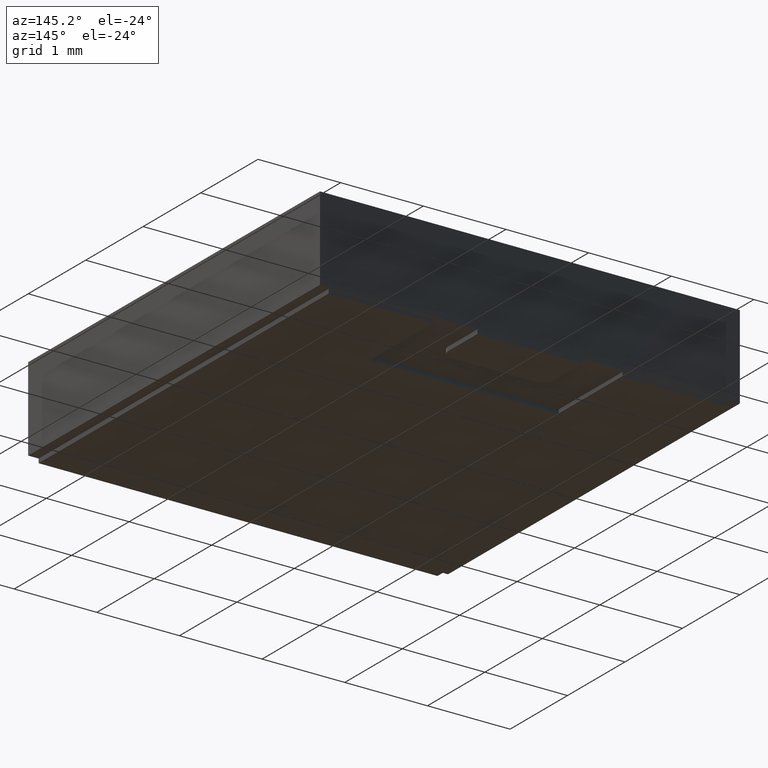
[diagram: clean part render]
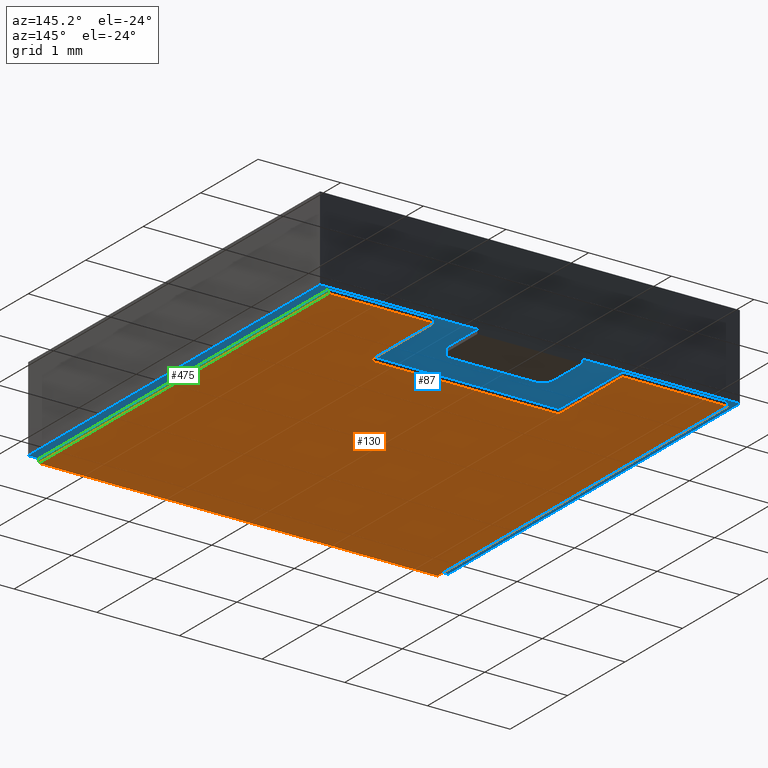
[diagram: same view with three faces highlighted in distinct colors, each labeled with its STEP entity id]
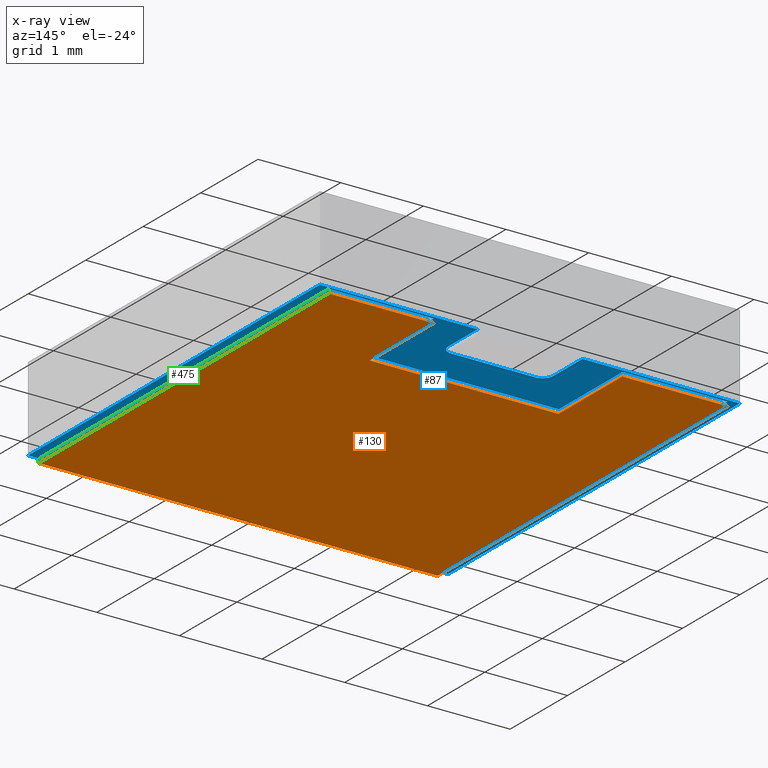
[diagram: x-ray of the same camera — body ghosted, the three highlighted faces saturated]
A machine part, auxiliary view with three faces highlighted in distinct colors.
The next image is the same camera in x-ray (body ghosted, the three faces saturated) — at least one of them is partly hidden behind the body in this view.
Their STEP definitions:

[orange] entity #130 — the highlighted planar face has unit normal (-0, 0, 1).
#5 = VERTEX_POINT ( 'NONE', #238 ) ;
#26 = CARTESIAN_POINT ( 'NONE',  ( -0.04499999999968905956, 0.05500000002084703965, 0.000000000000000000 ) ) ;
#37 = VECTOR ( 'NONE', #689, 39.37007874015748143 ) ;
#50 = EDGE_CURVE ( 'NONE', #154, #580, #598, .T. ) ;
#57 = VECTOR ( 'NONE', #412, 39.37007874015748143 ) ;
#59 = CARTESIAN_POINT ( 'NONE',  ( 0.09499999999999889089, 0.09874999999997412237, 0.000000000000000000 ) ) ;
#76 = ORIENTED_EDGE ( 'NONE', *, *, #740, .F. ) ;
#92 = DIRECTION ( 'NONE',  ( 1.000000000000000000, 0.000000000000000000, 0.000000000000000000 ) ) ;
#100 = EDGE_CURVE ( 'NONE', #580, #714, #572, .T. ) ;
#102 = ORIENTED_EDGE ( 'NONE', *, *, #291, .F. ) ;
#126 = VERTEX_POINT ( 'NONE', #26 ) ;
#130 = ADVANCED_FACE ( 'NONE', ( #691 ), #626, .F. ) ;
#154 = VERTEX_POINT ( 'NONE', #512 ) ;
#199 = CARTESIAN_POINT ( 'NONE',  ( 0.04500000000031433717, 0.09874999999997413624, 0.000000000000000000 ) ) ;
#226 = LINE ( 'NONE', #716, #57 ) ;
#229 = EDGE_CURVE ( 'NONE', #784, #286, #775, .T. ) ;
#232 = CARTESIAN_POINT ( 'NONE',  ( -0.09499999999999886313, -0.1000000000000014211, 0.000000000000000000 ) ) ;
#238 = CARTESIAN_POINT ( 'NONE',  ( 0.04500000000031433717, 0.05500000002084703965, 0.000000000000000000 ) ) ;
#239 = VECTOR ( 'NONE', #579, 39.37007874015748143 ) ;
#245 = ORIENTED_EDGE ( 'NONE', *, *, #229, .F. ) ;
#247 = CARTESIAN_POINT ( 'NONE',  ( -0.09499999999999886313, 0.09875000000001676881, 0.000000000000000000 ) ) ;
#249 = CARTESIAN_POINT ( 'NONE',  ( -0.04499999999968905956, 0.05500000002084703965, 0.000000000000000000 ) ) ;
#255 = ORIENTED_EDGE ( 'NONE', *, *, #50, .F. ) ;
#264 = DIRECTION ( 'NONE',  ( -1.000000000000000000, 3.414809992101873307E-16, -0.000000000000000000 ) ) ;
#275 = CARTESIAN_POINT ( 'NONE',  ( 0.000000000000000000, 0.000000000000000000, 0.000000000000000000 ) ) ;
#286 = VERTEX_POINT ( 'NONE', #707 ) ;
#291 = EDGE_CURVE ( 'NONE', #286, #154, #719, .T. ) ;
#292 = CARTESIAN_POINT ( 'NONE',  ( -0.09499999999999886313, 0.09875000000001676881, 0.000000000000000000 ) ) ;
#305 = DIRECTION ( 'NONE',  ( 8.590716961209431840E-17, 1.000000000000000000, -0.000000000000000000 ) ) ;
#306 = VERTEX_POINT ( 'NONE', #523 ) ;
#341 = LINE ( 'NONE', #463, #239 ) ;
#387 = AXIS2_PLACEMENT_3D ( 'NONE', #275, #518, #92 ) ;
#412 = DIRECTION ( 'NONE',  ( -0.000000000000000000, -1.000000000000000000, -0.000000000000000000 ) ) ;
#414 = DIRECTION ( 'NONE',  ( -0.000000000000000000, -1.000000000000000000, -0.000000000000000000 ) ) ;
#423 = EDGE_CURVE ( 'NONE', #5, #126, #623, .T. ) ;
#435 = ORIENTED_EDGE ( 'NONE', *, *, #725, .F. ) ;
#463 = CARTESIAN_POINT ( 'NONE',  ( -0.04499999999968905956, 0.09875000000001676881, 0.000000000000000000 ) ) ;
#476 = DIRECTION ( 'NONE',  ( 1.000000000000000000, -0.000000000000000000, -0.000000000000000000 ) ) ;
#486 = ORIENTED_EDGE ( 'NONE', *, *, #100, .F. ) ;
#487 = EDGE_LOOP ( 'NONE', ( #549, #612, #435, #486, #255, #102, #245, #76 ) ) ;
#512 = CARTESIAN_POINT ( 'NONE',  ( 0.09499999999999886313, -0.1000000000000014211, 0.000000000000000000 ) ) ;
#518 = DIRECTION ( 'NONE',  ( -0.000000000000000000, 0.000000000000000000, 1.000000000000000000 ) ) ;
#523 = CARTESIAN_POINT ( 'NONE',  ( -0.04499999999968905956, 0.09875000000001676881, 0.000000000000000000 ) ) ;
#539 = EDGE_CURVE ( 'NONE', #126, #306, #341, .T. ) ;
#549 = ORIENTED_EDGE ( 'NONE', *, *, #539, .F. ) ;
#571 = CARTESIAN_POINT ( 'NONE',  ( 0.09499999999999889089, 0.09874999999997412237, 0.000000000000000000 ) ) ;
#572 = LINE ( 'NONE', #199, #777 ) ;
#579 = DIRECTION ( 'NONE',  ( -0.000000000000000000, 1.000000000000000000, -0.000000000000000000 ) ) ;
#580 = VERTEX_POINT ( 'NONE', #571 ) ;
#591 = DIRECTION ( 'NONE',  ( -1.000000000000000000, -0.000000000000000000, -0.000000000000000000 ) ) ;
#592 = CARTESIAN_POINT ( 'NONE',  ( 0.09499999999999886313, -0.1000000000000014211, 0.000000000000000000 ) ) ;
#597 = VECTOR ( 'NONE', #591, 39.37007874015748143 ) ;
#598 = LINE ( 'NONE', #59, #694 ) ;
#603 = VECTOR ( 'NONE', #476, 39.37007874015748143 ) ;
#612 = ORIENTED_EDGE ( 'NONE', *, *, #423, .F. ) ;
#623 = LINE ( 'NONE', #249, #37 ) ;
#626 = PLANE ( 'NONE',  #387 ) ;
#660 = CARTESIAN_POINT ( 'NONE',  ( 0.04500000000031433717, 0.09874999999997413624, 0.000000000000000000 ) ) ;
#689 = DIRECTION ( 'NONE',  ( -1.000000000000000000, -0.000000000000000000, -0.000000000000000000 ) ) ;
#691 = FACE_OUTER_BOUND ( 'NONE', #487, .T. ) ;
#694 = VECTOR ( 'NONE', #305, 39.37007874015748143 ) ;
#707 = CARTESIAN_POINT ( 'NONE',  ( -0.09499999999999886313, -0.1000000000000014211, 0.000000000000000000 ) ) ;
#714 = VERTEX_POINT ( 'NONE', #660 ) ;
#716 = CARTESIAN_POINT ( 'NONE',  ( 0.04500000000031433717, 0.05500000002084703965, 0.000000000000000000 ) ) ;
#717 = VECTOR ( 'NONE', #414, 39.37007874015748143 ) ;
#719 = LINE ( 'NONE', #592, #603 ) ;
#721 = LINE ( 'NONE', #292, #597 ) ;
#725 = EDGE_CURVE ( 'NONE', #714, #5, #226, .T. ) ;
#740 = EDGE_CURVE ( 'NONE', #306, #784, #721, .T. ) ;
#775 = LINE ( 'NONE', #232, #717 ) ;
#777 = VECTOR ( 'NONE', #264, 39.37007874015748143 ) ;
#784 = VERTEX_POINT ( 'NONE', #247 ) ;

[blue] entity #87 — the highlighted planar face has unit normal (-0, 0, -1).
#9 = CARTESIAN_POINT ( 'NONE',  ( 0.000000000000000000, -0.1000000000000014211, 0.002000000000000000042 ) ) ;
#19 = CARTESIAN_POINT ( 'NONE',  ( 0.02500000000001989867, 0.1000000061611885371, 0.002000000000000000042 ) ) ;
#21 = LINE ( 'NONE', #687, #104 ) ;
#33 = LINE ( 'NONE', #153, #751 ) ;
#38 = VECTOR ( 'NONE', #143, 39.37007874015748143 ) ;
#41 = ORIENTED_EDGE ( 'NONE', *, *, #533, .T. ) ;
#42 = CARTESIAN_POINT ( 'NONE',  ( 0.04500000000031433717, 0.09874999999997413624, 0.002000000000000000042 ) ) ;
#49 = ORIENTED_EDGE ( 'NONE', *, *, #327, .T. ) ;
#60 = VECTOR ( 'NONE', #345, 39.37007874015748143 ) ;
#61 = LINE ( 'NONE', #587, #746 ) ;
#79 = ORIENTED_EDGE ( 'NONE', *, *, #556, .T. ) ;
#85 = VERTEX_POINT ( 'NONE', #214 ) ;
#87 = ADVANCED_FACE ( 'NONE', ( #462 ), #207, .T. ) ;
#88 = DIRECTION ( 'NONE',  ( -1.000000000000000000, 0.000000000000000000, 0.000000000000000000 ) ) ;
#89 = VECTOR ( 'NONE', #766, 39.37007874015748143 ) ;
#96 = ORIENTED_EDGE ( 'NONE', *, *, #119, .T. ) ;
#104 = VECTOR ( 'NONE', #455, 39.37007874015748143 ) ;
#105 = DIRECTION ( 'NONE',  ( -0.000000000000000000, -1.000000000000000000, -0.000000000000000000 ) ) ;
#111 = LINE ( 'NONE', #42, #636 ) ;
#119 = EDGE_CURVE ( 'NONE', #606, #671, #21, .T. ) ;
#127 = CARTESIAN_POINT ( 'NONE',  ( 0.09999999999999430178, -0.1000000000000014211, 0.002000000000000000042 ) ) ;
#128 = CARTESIAN_POINT ( 'NONE',  ( -0.01999999999999602096, 0.07499998769844751223, 0.002000000000000000042 ) ) ;
#138 = DIRECTION ( 'NONE',  ( 1.000000000000000000, 0.000000000000000000, 0.000000000000000000 ) ) ;
#142 = CARTESIAN_POINT ( 'NONE',  ( 0.02500000000001989867, 0.08000000002085344564, 0.002000000000000000042 ) ) ;
#143 = DIRECTION ( 'NONE',  ( -0.000000000000000000, 1.000000000000000000, -0.000000000000000000 ) ) ;
#145 = LINE ( 'NONE', #693, #779 ) ;
#146 = EDGE_CURVE ( 'NONE', #443, #773, #498, .T. ) ;
#148 = CARTESIAN_POINT ( 'NONE',  ( -0.04499999999968905956, 0.09875000000001676881, 0.002000000000000000042 ) ) ;
#149 = LINE ( 'NONE', #398, #525 ) ;
#153 = CARTESIAN_POINT ( 'NONE',  ( 0.000000000000000000, 0.1000000000000014211, 0.002000000000000000042 ) ) ;
#158 = DIRECTION ( 'NONE',  ( -1.000000000000000000, 0.000000000000000000, 0.000000000000000000 ) ) ;
#167 = ORIENTED_EDGE ( 'NONE', *, *, #545, .T. ) ;
#168 = LINE ( 'NONE', #639, #759 ) ;
#170 = CARTESIAN_POINT ( 'NONE',  ( -0.09999999999999430178, 0.1000000000000014211, 0.002000000000000000042 ) ) ;
#171 = EDGE_CURVE ( 'NONE', #661, #85, #697, .T. ) ;
#172 = VERTEX_POINT ( 'NONE', #19 ) ;
#174 = CARTESIAN_POINT ( 'NONE',  ( 0.02000000000002444267, 0.07500000002087149620, 0.002000000000000000042 ) ) ;
#183 = VERTEX_POINT ( 'NONE', #383 ) ;
#192 = EDGE_CURVE ( 'NONE', #172, #443, #325, .T. ) ;
#197 = ORIENTED_EDGE ( 'NONE', *, *, #171, .T. ) ;
#203 = VECTOR ( 'NONE', #261, 39.37007874015748143 ) ;
#207 = PLANE ( 'NONE',  #335 ) ;
#208 = VECTOR ( 'NONE', #138, 39.37007874015748143 ) ;
#209 = EDGE_CURVE ( 'NONE', #439, #241, #168, .T. ) ;
#212 = LINE ( 'NONE', #332, #60 ) ;
#214 = CARTESIAN_POINT ( 'NONE',  ( -0.04499999999968905956, 0.09875000000001676881, 0.002000000000000000042 ) ) ;
#220 = CARTESIAN_POINT ( 'NONE',  ( 0.09499999999999889089, 0.09874999999997412237, 0.002000000000000000042 ) ) ;
#223 = CARTESIAN_POINT ( 'NONE',  ( 0.09499999999999886313, -0.1000000000000014211, 0.002000000000000000042 ) ) ;
#224 = VECTOR ( 'NONE', #466, 39.37007874015748143 ) ;
#225 = EDGE_CURVE ( 'NONE', #690, #640, #411, .T. ) ;
#230 = DIRECTION ( 'NONE',  ( 1.000000000000000000, 0.000000000000000000, 0.000000000000000000 ) ) ;
#233 = ORIENTED_EDGE ( 'NONE', *, *, #225, .T. ) ;
#241 = VERTEX_POINT ( 'NONE', #278 ) ;
#243 = VERTEX_POINT ( 'NONE', #472 ) ;
#261 = DIRECTION ( 'NONE',  ( -1.000000000000000000, 0.000000000000000000, 0.000000000000000000 ) ) ;
#273 = DIRECTION ( 'NONE',  ( 1.000000000000000000, 0.000000000000000000, 0.000000000000000000 ) ) ;
#278 = CARTESIAN_POINT ( 'NONE',  ( -0.09499999999999886313, -0.1000000000000014211, 0.002000000000000000042 ) ) ;
#288 = ORIENTED_EDGE ( 'NONE', *, *, #384, .T. ) ;
#304 = EDGE_LOOP ( 'NONE', ( #233, #601, #724, #373, #348, #49, #582, #421, #79, #197, #655, #424, #490, #41, #167, #96, #686, #288 ) ) ;
#312 = EDGE_CURVE ( 'NONE', #640, #172, #577, .T. ) ;
#314 = LINE ( 'NONE', #9, #203 ) ;
#325 = LINE ( 'NONE', #451, #208 ) ;
#327 = EDGE_CURVE ( 'NONE', #342, #183, #770, .T. ) ;
#332 = CARTESIAN_POINT ( 'NONE',  ( -0.04499999999968905956, 0.05500000002084703965, 0.002000000000000000042 ) ) ;
#335 = AXIS2_PLACEMENT_3D ( 'NONE', #760, #624, #88 ) ;
#342 = VERTEX_POINT ( 'NONE', #223 ) ;
#345 = DIRECTION ( 'NONE',  ( -1.000000000000000000, -0.000000000000000000, -0.000000000000000000 ) ) ;
#348 = ORIENTED_EDGE ( 'NONE', *, *, #634, .T. ) ;
#349 = DIRECTION ( 'NONE',  ( 0.000000000000000000, 0.000000000000000000, 1.000000000000000000 ) ) ;
#350 = CARTESIAN_POINT ( 'NONE',  ( -0.01999999999999602096, 0.07499998769844751223, 0.002000000000000000042 ) ) ;
#373 = ORIENTED_EDGE ( 'NONE', *, *, #146, .T. ) ;
#383 = CARTESIAN_POINT ( 'NONE',  ( 0.09499999999999889089, 0.09874999999997412237, 0.002000000000000000042 ) ) ;
#384 = EDGE_CURVE ( 'NONE', #738, #690, #744, .T. ) ;
#386 = VECTOR ( 'NONE', #680, 39.37007874015748143 ) ;
#394 = EDGE_CURVE ( 'NONE', #241, #537, #314, .T. ) ;
#398 = CARTESIAN_POINT ( 'NONE',  ( 0.000000000000000000, -0.1000000000000014211, 0.002000000000000000042 ) ) ;
#411 = CIRCLE ( 'NONE', #720, 0.004999999999981950306 ) ;
#421 = ORIENTED_EDGE ( 'NONE', *, *, #700, .T. ) ;
#424 = ORIENTED_EDGE ( 'NONE', *, *, #209, .T. ) ;
#439 = VERTEX_POINT ( 'NONE', #749 ) ;
#441 = CARTESIAN_POINT ( 'NONE',  ( -0.09999999999999430178, 0.000000000000000000, 0.002000000000000000042 ) ) ;
#443 = VERTEX_POINT ( 'NONE', #685 ) ;
#451 = CARTESIAN_POINT ( 'NONE',  ( 0.000000000000000000, 0.1000000000000014211, 0.002000000000000000042 ) ) ;
#455 = DIRECTION ( 'NONE',  ( -2.134255589796766652E-16, -1.000000000000000000, 0.000000000000000000 ) ) ;
#457 = CARTESIAN_POINT ( 'NONE',  ( -0.02499999999999147349, 0.09999999383881073844, 0.002000000000000000042 ) ) ;
#462 = FACE_OUTER_BOUND ( 'NONE', #304, .T. ) ;
#466 = DIRECTION ( 'NONE',  ( 8.590716961209431840E-17, 1.000000000000000000, -0.000000000000000000 ) ) ;
#468 = DIRECTION ( 'NONE',  ( -0.000000000000000000, -1.000000000000000000, -0.000000000000000000 ) ) ;
#472 = CARTESIAN_POINT ( 'NONE',  ( 0.04500000000031433717, 0.05500000002084703965, 0.002000000000000000042 ) ) ;
#474 = DIRECTION ( 'NONE',  ( -1.000000000000000000, 3.414809992101873307E-16, -0.000000000000000000 ) ) ;
#477 = VERTEX_POINT ( 'NONE', #508 ) ;
#490 = ORIENTED_EDGE ( 'NONE', *, *, #394, .T. ) ;
#491 = LINE ( 'NONE', #441, #386 ) ;
#495 = CARTESIAN_POINT ( 'NONE',  ( -0.09999999999999430178, -0.1000000000000014211, 0.002000000000000000042 ) ) ;
#498 = LINE ( 'NONE', #574, #547 ) ;
#508 = CARTESIAN_POINT ( 'NONE',  ( 0.04500000000031433717, 0.09874999999997413624, 0.002000000000000000042 ) ) ;
#519 = CARTESIAN_POINT ( 'NONE',  ( 0.02500000000001990214, 0.08000000002085344564, 0.002000000000000000042 ) ) ;
#525 = VECTOR ( 'NONE', #158, 39.37007874015748143 ) ;
#533 = EDGE_CURVE ( 'NONE', #537, #731, #491, .T. ) ;
#534 = DIRECTION ( 'NONE',  ( 0.000000000000000000, 0.000000000000000000, 1.000000000000000000 ) ) ;
#537 = VERTEX_POINT ( 'NONE', #495 ) ;
#538 = AXIS2_PLACEMENT_3D ( 'NONE', #774, #534, #230 ) ;
#545 = EDGE_CURVE ( 'NONE', #731, #606, #33, .T. ) ;
#547 = VECTOR ( 'NONE', #566, 39.37007874015748143 ) ;
#556 = EDGE_CURVE ( 'NONE', #243, #661, #212, .T. ) ;
#566 = DIRECTION ( 'NONE',  ( 0.000000000000000000, -1.000000000000000000, 0.000000000000000000 ) ) ;
#574 = CARTESIAN_POINT ( 'NONE',  ( 0.09999999999999430178, 0.000000000000000000, 0.002000000000000000042 ) ) ;
#577 = LINE ( 'NONE', #519, #89 ) ;
#582 = ORIENTED_EDGE ( 'NONE', *, *, #706, .T. ) ;
#587 = CARTESIAN_POINT ( 'NONE',  ( 0.04500000000031433717, 0.05500000002084703965, 0.002000000000000000042 ) ) ;
#601 = ORIENTED_EDGE ( 'NONE', *, *, #312, .T. ) ;
#605 = DIRECTION ( 'NONE',  ( 0.9999999999999524825, 3.080605995648821658E-07, 0.000000000000000000 ) ) ;
#606 = VERTEX_POINT ( 'NONE', #457 ) ;
#616 = EDGE_CURVE ( 'NONE', #85, #439, #145, .T. ) ;
#624 = DIRECTION ( 'NONE',  ( -0.000000000000000000, 0.000000000000000000, -1.000000000000000000 ) ) ;
#634 = EDGE_CURVE ( 'NONE', #773, #342, #149, .T. ) ;
#636 = VECTOR ( 'NONE', #474, 39.37007874015748143 ) ;
#639 = CARTESIAN_POINT ( 'NONE',  ( -0.09499999999999886313, -0.1000000000000014211, 0.002000000000000000042 ) ) ;
#640 = VERTEX_POINT ( 'NONE', #142 ) ;
#655 = ORIENTED_EDGE ( 'NONE', *, *, #616, .T. ) ;
#661 = VERTEX_POINT ( 'NONE', #764 ) ;
#666 = CARTESIAN_POINT ( 'NONE',  ( 0.02000000000003794576, 0.08000000002085344564, 0.002000000000000000042 ) ) ;
#670 = VECTOR ( 'NONE', #605, 39.37007874015748854 ) ;
#671 = VERTEX_POINT ( 'NONE', #727 ) ;
#674 = EDGE_CURVE ( 'NONE', #671, #738, #678, .T. ) ;
#678 = CIRCLE ( 'NONE', #538, 0.005000000000006110668 ) ;
#680 = DIRECTION ( 'NONE',  ( 0.000000000000000000, 1.000000000000000000, -0.000000000000000000 ) ) ;
#685 = CARTESIAN_POINT ( 'NONE',  ( 0.09999999999999430178, 0.1000000000000014211, 0.002000000000000000042 ) ) ;
#686 = ORIENTED_EDGE ( 'NONE', *, *, #674, .T. ) ;
#687 = CARTESIAN_POINT ( 'NONE',  ( -0.02499999999999147349, 0.09999999383881073844, 0.002000000000000000042 ) ) ;
#690 = VERTEX_POINT ( 'NONE', #174 ) ;
#693 = CARTESIAN_POINT ( 'NONE',  ( -0.09499999999999886313, 0.09875000000001676881, 0.002000000000000000042 ) ) ;
#697 = LINE ( 'NONE', #148, #38 ) ;
#700 = EDGE_CURVE ( 'NONE', #477, #243, #61, .T. ) ;
#706 = EDGE_CURVE ( 'NONE', #183, #477, #111, .T. ) ;
#720 = AXIS2_PLACEMENT_3D ( 'NONE', #666, #349, #778 ) ;
#724 = ORIENTED_EDGE ( 'NONE', *, *, #192, .T. ) ;
#727 = CARTESIAN_POINT ( 'NONE',  ( -0.02499999999999147696, 0.07999998769846426716, 0.002000000000000000042 ) ) ;
#731 = VERTEX_POINT ( 'NONE', #170 ) ;
#738 = VERTEX_POINT ( 'NONE', #350 ) ;
#744 = LINE ( 'NONE', #128, #670 ) ;
#746 = VECTOR ( 'NONE', #468, 39.37007874015748143 ) ;
#749 = CARTESIAN_POINT ( 'NONE',  ( -0.09499999999999886313, 0.09875000000001676881, 0.002000000000000000042 ) ) ;
#751 = VECTOR ( 'NONE', #273, 39.37007874015748143 ) ;
#759 = VECTOR ( 'NONE', #105, 39.37007874015748143 ) ;
#760 = CARTESIAN_POINT ( 'NONE',  ( 0.000000000000000000, 0.000000000000000000, 0.002000000000000000042 ) ) ;
#762 = DIRECTION ( 'NONE',  ( -1.000000000000000000, -0.000000000000000000, -0.000000000000000000 ) ) ;
#764 = CARTESIAN_POINT ( 'NONE',  ( -0.04499999999968905956, 0.05500000002084703965, 0.002000000000000000042 ) ) ;
#766 = DIRECTION ( 'NONE',  ( -2.134255589797980265E-16, 1.000000000000000000, 0.000000000000000000 ) ) ;
#770 = LINE ( 'NONE', #220, #224 ) ;
#773 = VERTEX_POINT ( 'NONE', #127 ) ;
#774 = CARTESIAN_POINT ( 'NONE',  ( -0.01999999999998536629, 0.07999998769845362290, 0.002000000000000000042 ) ) ;
#778 = DIRECTION ( 'NONE',  ( 1.000000000000000000, 0.000000000000000000, 0.000000000000000000 ) ) ;
#779 = VECTOR ( 'NONE', #762, 39.37007874015748143 ) ;

[green] entity #475 — the highlighted planar face has unit normal (-1, 0, 0).
#10 = ORIENTED_EDGE ( 'NONE', *, *, #77, .T. ) ;
#20 = CARTESIAN_POINT ( 'NONE',  ( 0.09499999999999889089, 0.09874999999997412237, 0.002000000000000000042 ) ) ;
#50 = EDGE_CURVE ( 'NONE', #154, #580, #598, .T. ) ;
#59 = CARTESIAN_POINT ( 'NONE',  ( 0.09499999999999889089, 0.09874999999997412237, 0.000000000000000000 ) ) ;
#77 = EDGE_CURVE ( 'NONE', #342, #154, #259, .T. ) ;
#83 = PLANE ( 'NONE',  #323 ) ;
#91 = EDGE_CURVE ( 'NONE', #183, #580, #392, .T. ) ;
#117 = ORIENTED_EDGE ( 'NONE', *, *, #327, .F. ) ;
#154 = VERTEX_POINT ( 'NONE', #512 ) ;
#183 = VERTEX_POINT ( 'NONE', #383 ) ;
#193 = ORIENTED_EDGE ( 'NONE', *, *, #50, .T. ) ;
#211 = CARTESIAN_POINT ( 'NONE',  ( 0.09499999999999886313, -0.1000000000000014211, 0.002000000000000000042 ) ) ;
#220 = CARTESIAN_POINT ( 'NONE',  ( 0.09499999999999889089, 0.09874999999997412237, 0.002000000000000000042 ) ) ;
#223 = CARTESIAN_POINT ( 'NONE',  ( 0.09499999999999886313, -0.1000000000000014211, 0.002000000000000000042 ) ) ;
#224 = VECTOR ( 'NONE', #466, 39.37007874015748143 ) ;
#259 = LINE ( 'NONE', #211, #324 ) ;
#266 = DIRECTION ( 'NONE',  ( -1.000000000000000000, 8.590716961209433072E-17, 0.000000000000000000 ) ) ;
#305 = DIRECTION ( 'NONE',  ( 8.590716961209431840E-17, 1.000000000000000000, -0.000000000000000000 ) ) ;
#321 = DIRECTION ( 'NONE',  ( -8.590716961209433072E-17, -1.000000000000000000, 0.000000000000000000 ) ) ;
#323 = AXIS2_PLACEMENT_3D ( 'NONE', #20, #266, #321 ) ;
#324 = VECTOR ( 'NONE', #619, 39.37007874015748143 ) ;
#327 = EDGE_CURVE ( 'NONE', #342, #183, #770, .T. ) ;
#342 = VERTEX_POINT ( 'NONE', #223 ) ;
#359 = VECTOR ( 'NONE', #629, 39.37007874015748143 ) ;
#383 = CARTESIAN_POINT ( 'NONE',  ( 0.09499999999999889089, 0.09874999999997412237, 0.002000000000000000042 ) ) ;
#385 = FACE_OUTER_BOUND ( 'NONE', #550, .T. ) ;
#392 = LINE ( 'NONE', #757, #359 ) ;
#466 = DIRECTION ( 'NONE',  ( 8.590716961209431840E-17, 1.000000000000000000, -0.000000000000000000 ) ) ;
#475 = ADVANCED_FACE ( 'NONE', ( #385 ), #83, .F. ) ;
#512 = CARTESIAN_POINT ( 'NONE',  ( 0.09499999999999886313, -0.1000000000000014211, 0.000000000000000000 ) ) ;
#550 = EDGE_LOOP ( 'NONE', ( #193, #594, #117, #10 ) ) ;
#571 = CARTESIAN_POINT ( 'NONE',  ( 0.09499999999999889089, 0.09874999999997412237, 0.000000000000000000 ) ) ;
#580 = VERTEX_POINT ( 'NONE', #571 ) ;
#594 = ORIENTED_EDGE ( 'NONE', *, *, #91, .F. ) ;
#598 = LINE ( 'NONE', #59, #694 ) ;
#619 = DIRECTION ( 'NONE',  ( -0.000000000000000000, -0.000000000000000000, -1.000000000000000000 ) ) ;
#629 = DIRECTION ( 'NONE',  ( -0.000000000000000000, -0.000000000000000000, -1.000000000000000000 ) ) ;
#694 = VECTOR ( 'NONE', #305, 39.37007874015748143 ) ;
#757 = CARTESIAN_POINT ( 'NONE',  ( 0.09499999999999889089, 0.09874999999997412237, 0.002000000000000000042 ) ) ;
#770 = LINE ( 'NONE', #220, #224 ) ;